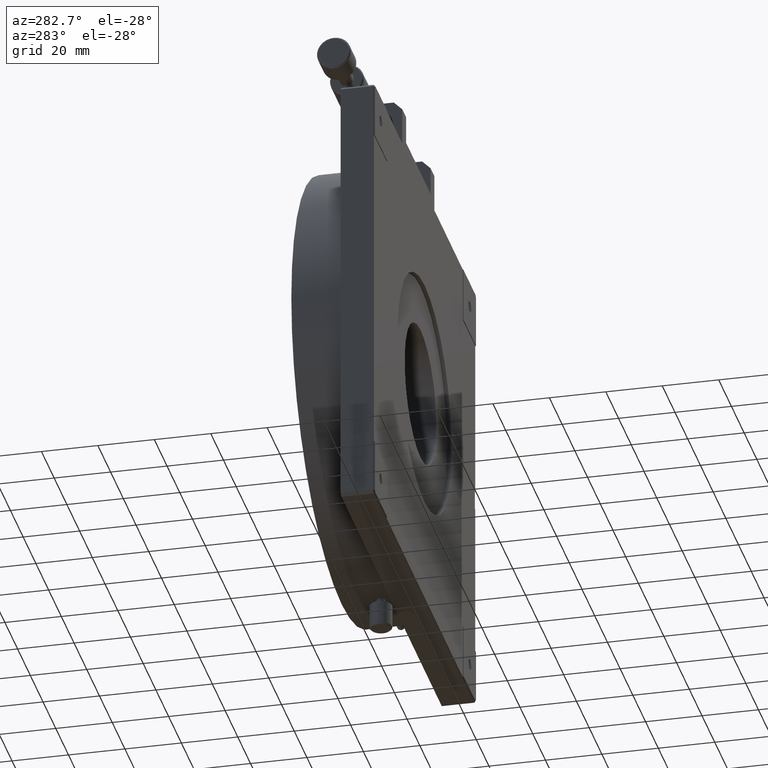
[diagram: clean part render]
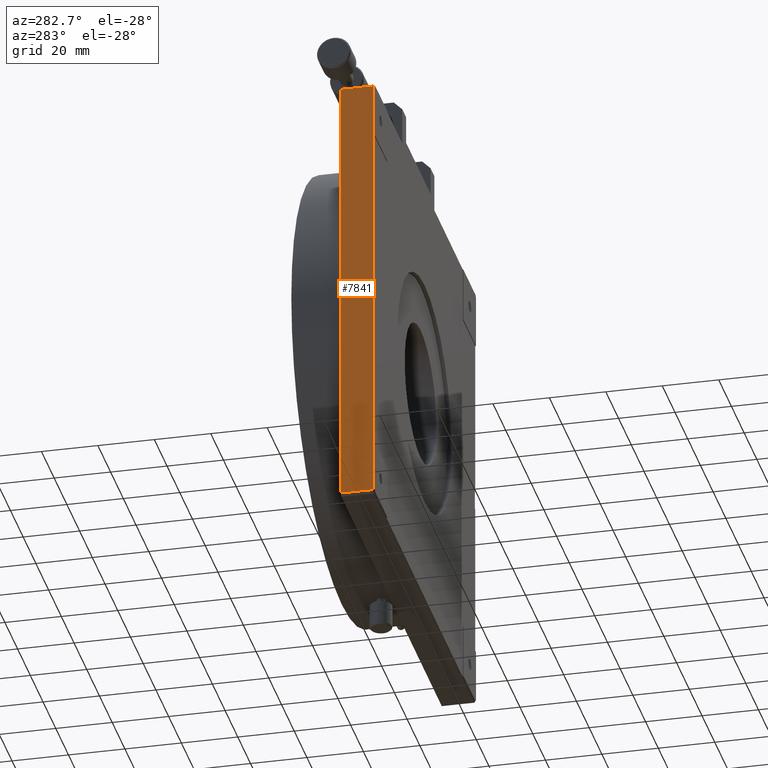
[diagram: same view with one face highlighted and labeled with its STEP entity id]
A machine part, auxiliary view. The second image highlights one B-rep face of the part: STEP entity #7841.
In plain terms, the highlighted planar face has unit normal (1, 0, 0).
Its self-contained STEP definition (entity closure, byte-faithful):
#254 = PLANE ( 'NONE',  #8756 ) ;
#255 = DIRECTION ( 'NONE',  ( 0.0000000000000000000, 0.0000000000000000000, -1.000000000000000000 ) ) ;
#276 = CARTESIAN_POINT ( 'NONE',  ( 0.0000000000000000000, 12.00000000000000000, 1.000000000000000000 ) ) ;
#279 = DIRECTION ( 'NONE',  ( 1.000000000000000000, 0.0000000000000000000, 0.0000000000000000000 ) ) ;
#321 = DIRECTION ( 'NONE',  ( -0.0000000000000000000, -0.0000000000000000000, 1.000000000000000000 ) ) ;
#327 = DIRECTION ( 'NONE',  ( -0.0000000000000000000, 1.000000000000000000, 0.0000000000000000000 ) ) ;
#329 = DIRECTION ( 'NONE',  ( 0.0000000000000000000, -1.000000000000000000, -0.0000000000000000000 ) ) ;
#332 = CARTESIAN_POINT ( 'NONE',  ( 0.0000000000000000000, 12.00000000000000000, 1.000000000000000000 ) ) ;
#351 = CARTESIAN_POINT ( 'NONE',  ( 0.0000000000000000000, 12.00000000000000000, 1.000000000000000000 ) ) ;
#352 = CARTESIAN_POINT ( 'NONE',  ( 0.0000000000000000000, 12.00000000000000000, 159.0000000000000000 ) ) ;
#358 = DIRECTION ( 'NONE',  ( 0.0000000000000000000, 0.0000000000000000000, 1.000000000000000000 ) ) ;
#370 = CARTESIAN_POINT ( 'NONE',  ( 0.0000000000000000000, 0.5000000000000000000, 1.000000000000000000 ) ) ;
#2749 = ORIENTED_EDGE ( 'NONE', *, *, #8176, .F. ) ;
#2936 = VERTEX_POINT ( 'NONE', #6461 ) ;
#2977 = VERTEX_POINT ( 'NONE', #6490 ) ;
#2982 = VERTEX_POINT ( 'NONE', #6500 ) ;
#2983 = ORIENTED_EDGE ( 'NONE', *, *, #8174, .F. ) ;
#2991 = VERTEX_POINT ( 'NONE', #6484 ) ;
#3007 = ORIENTED_EDGE ( 'NONE', *, *, #8205, .T. ) ;
#3009 = ORIENTED_EDGE ( 'NONE', *, *, #8168, .F. ) ;
#4615 = FACE_OUTER_BOUND ( 'NONE', #7664, .T. ) ;
#6461 = CARTESIAN_POINT ( 'NONE',  ( -1.428369180580845400E-016, 0.4999999999999989500, 1.000000000000000200 ) ) ;
#6484 = CARTESIAN_POINT ( 'NONE',  ( 0.0000000000000000000, 12.00000000000000000, 1.000000000000000000 ) ) ;
#6490 = CARTESIAN_POINT ( 'NONE',  ( -3.363629642453854800E-016, 0.5000000000000006700, 159.0000000000000300 ) ) ;
#6500 = CARTESIAN_POINT ( 'NONE',  ( 0.0000000000000000000, 12.00000000000000000, 159.0000000000000000 ) ) ;
#7664 = EDGE_LOOP ( 'NONE', ( #3007, #2749, #3009, #2983 ) ) ;
#7841 = ADVANCED_FACE ( 'NONE', ( #4615 ), #254, .F. ) ;
#8168 = EDGE_CURVE ( 'NONE', #2991, #2982, #8587, .T. ) ;
#8174 = EDGE_CURVE ( 'NONE', #2936, #2991, #8590, .T. ) ;
#8176 = EDGE_CURVE ( 'NONE', #2982, #2977, #8667, .T. ) ;
#8205 = EDGE_CURVE ( 'NONE', #2936, #2977, #8674, .T. ) ;
#8587 = LINE ( 'NONE', #351, #8632 ) ;
#8590 = LINE ( 'NONE', #332, #8640 ) ;
#8632 = VECTOR ( 'NONE', #321, 1000.000000000000000 ) ;
#8640 = VECTOR ( 'NONE', #327, 1000.000000000000000 ) ;
#8649 = VECTOR ( 'NONE', #329, 1000.000000000000000 ) ;
#8667 = LINE ( 'NONE', #352, #8649 ) ;
#8674 = LINE ( 'NONE', #370, #8675 ) ;
#8675 = VECTOR ( 'NONE', #358, 1000.000000000000000 ) ;
#8756 = AXIS2_PLACEMENT_3D ( 'NONE', #276, #279, #255 ) ;